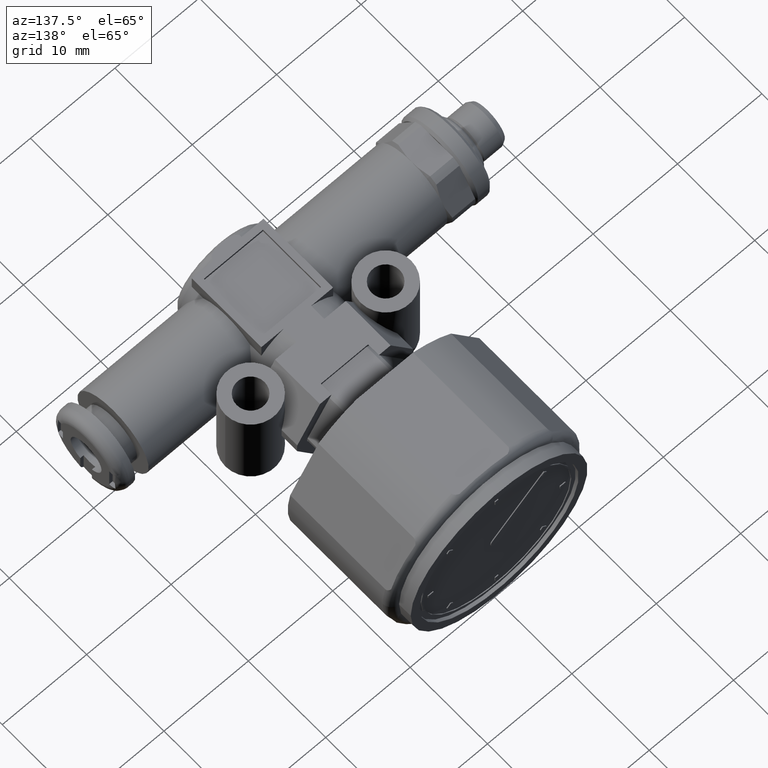
[diagram: clean part render]
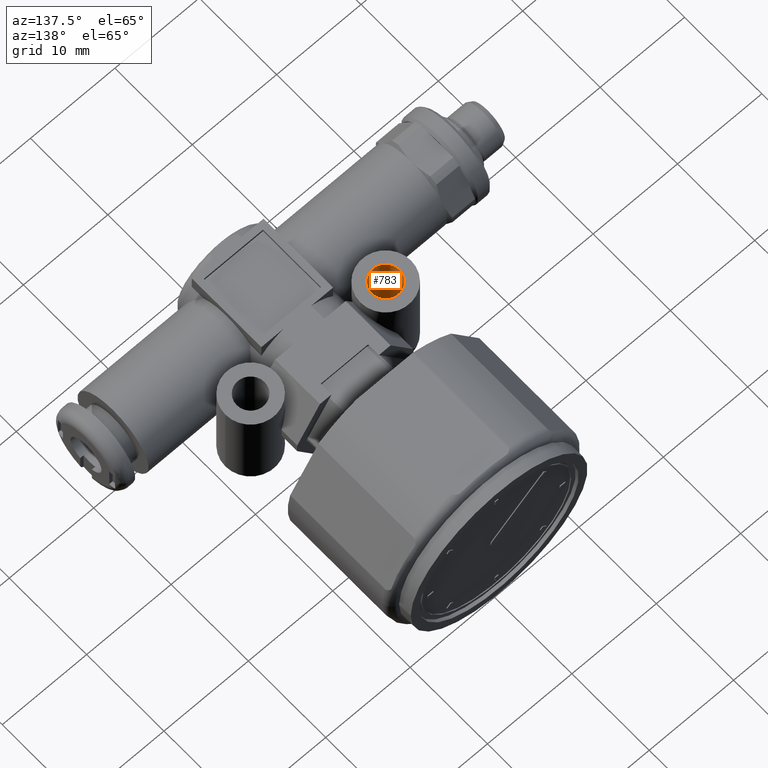
[diagram: same view with one face highlighted and labeled with its STEP entity id]
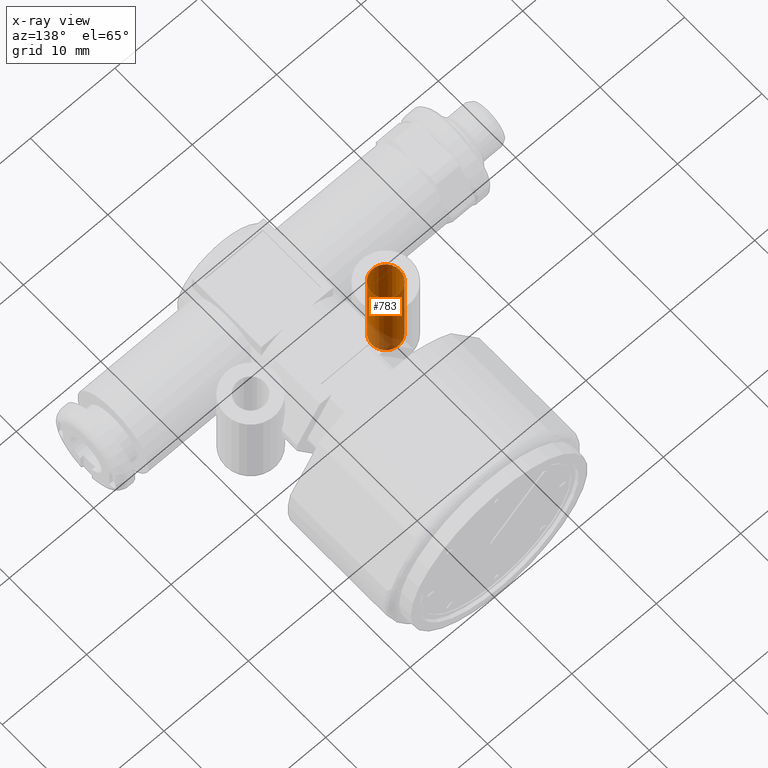
[diagram: x-ray of the same camera — body ghosted, the highlighted face saturated]
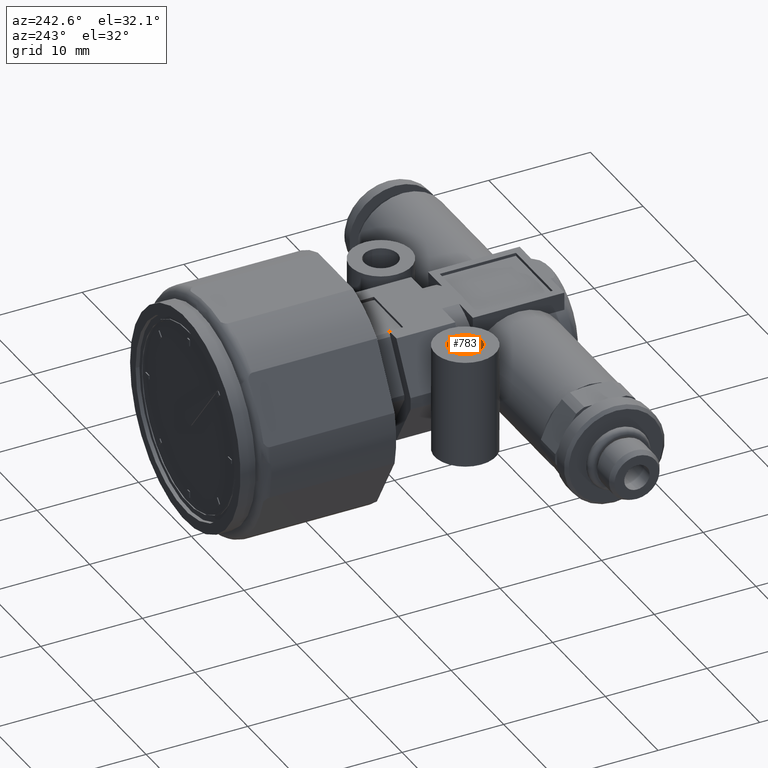
[diagram: same view with one face highlighted and labeled with its STEP entity id]
A machine part, auxiliary view. The second image highlights one B-rep face of the part: STEP entity #783.
The next image is the same camera in x-ray: the body ghosted, the highlighted face saturated — about 17% of this face is hidden behind the body in this view.
A second angle (auxiliary view) of the same face is appended — the face is thin or edge-on in the first view.
In plain terms, the highlighted cylindrical surface (bore or boss wall) has radius 1.65 mm, axis along (0, 0, 1).
Its self-contained STEP definition (entity closure, byte-faithful):
#783 = ADVANCED_FACE( '', ( #1599, #1600 ), #1601, .F. );
#1599 = FACE_OUTER_BOUND( '', #2385, .T. );
#1600 = FACE_OUTER_BOUND( '', #2386, .T. );
#1601 = CYLINDRICAL_SURFACE( '', #2387, 1.65000000000000 );
#2385 = EDGE_LOOP( '', ( #4272 ) );
#2386 = EDGE_LOOP( '', ( #4273 ) );
#2387 = AXIS2_PLACEMENT_3D( '', #4274, #4275, #4276 );
#4272 = ORIENTED_EDGE( '', *, *, #4929, .F. );
#4273 = ORIENTED_EDGE( '', *, *, #4962, .T. );
#4274 = CARTESIAN_POINT( '', ( -8.00000000000000, 7.20000000000000, 8.00000000000000 ) );
#4275 = DIRECTION( '', ( 0.000000000000000, -0.000000000000000, 1.00000000000000 ) );
#4276 = DIRECTION( '', ( -1.00000000000000, 0.000000000000000, 0.000000000000000 ) );
#4929 = EDGE_CURVE( '', #5985, #5985, #5986, .F. );
#4962 = EDGE_CURVE( '', #6023, #6023, #6024, .F. );
#5985 = VERTEX_POINT( '', #7900 );
#5986 = CIRCLE( '', #7901, 1.65000000000000 );
#6023 = VERTEX_POINT( '', #7990 );
#6024 = CIRCLE( '', #7991, 1.65000000000000 );
#7900 = CARTESIAN_POINT( '', ( -6.35000000000000, 7.20000000000000, 5.35000000000000 ) );
#7901 = AXIS2_PLACEMENT_3D( '', #8738, #8739, #8740 );
#7990 = CARTESIAN_POINT( '', ( -6.35000000000000, 7.20000000000000, -5.35000000000000 ) );
#7991 = AXIS2_PLACEMENT_3D( '', #8772, #8773, #8774 );
#8738 = CARTESIAN_POINT( '', ( -8.00000000000000, 7.20000000000000, 5.35000000000000 ) );
#8739 = DIRECTION( '', ( 0.000000000000000, 0.000000000000000, 1.00000000000000 ) );
#8740 = DIRECTION( '', ( 1.00000000000000, 0.000000000000000, -0.000000000000000 ) );
#8772 = CARTESIAN_POINT( '', ( -8.00000000000000, 7.20000000000000, -5.35000000000000 ) );
#8773 = DIRECTION( '', ( 0.000000000000000, 0.000000000000000, 1.00000000000000 ) );
#8774 = DIRECTION( '', ( 1.00000000000000, 0.000000000000000, -0.000000000000000 ) );